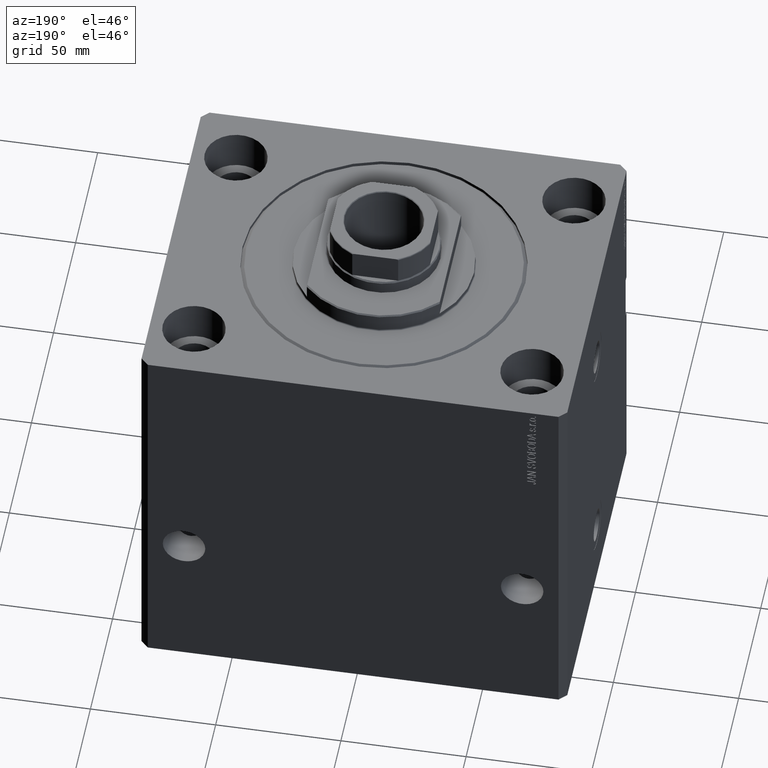
[diagram: clean part render]
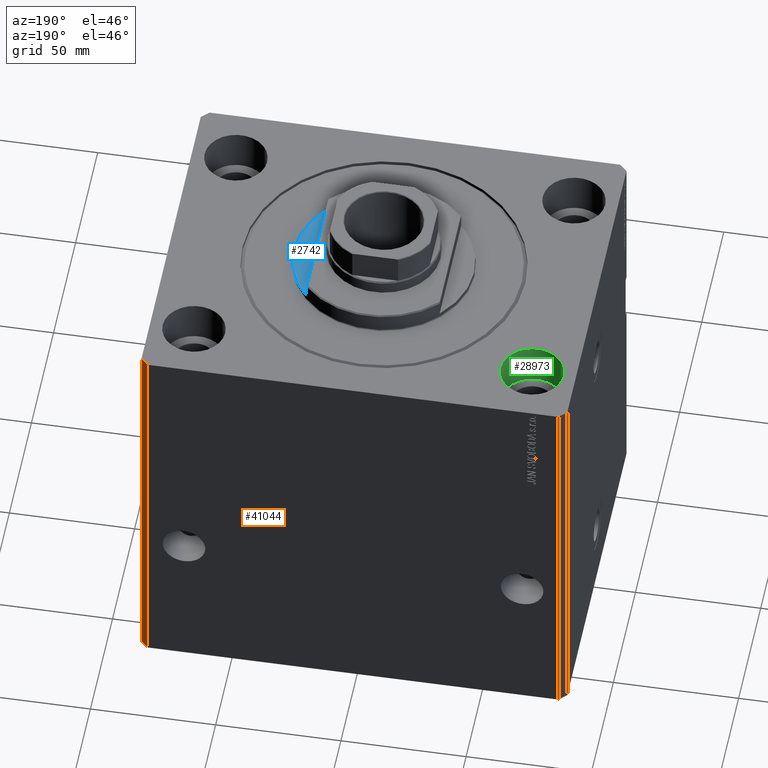
[diagram: same view with three faces highlighted in distinct colors, each labeled with its STEP entity id]
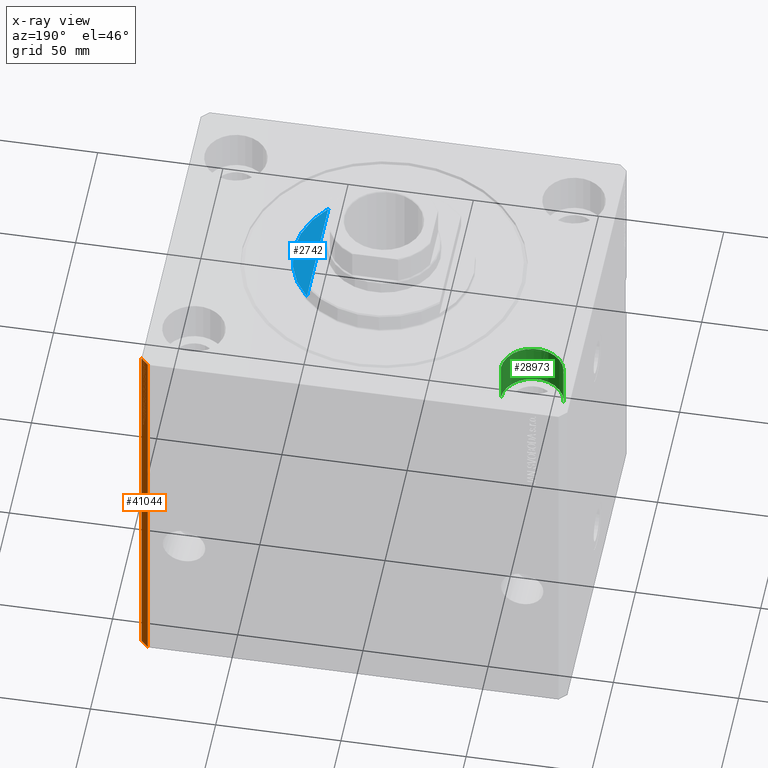
[diagram: x-ray of the same camera — body ghosted, the three highlighted faces saturated]
A machine part, auxiliary view with three faces highlighted in distinct colors.
The next image is the same camera in x-ray (body ghosted, the three faces saturated) — at least one of them is partly hidden behind the body in this view.
Their STEP definitions:

[orange] entity #41044 — the highlighted planar face has unit normal (0.7071, 0.7071, 0).
#2836 = VECTOR ( 'NONE', #12691, 1000.000000000000000 ) ;
#5228 = VERTEX_POINT ( 'NONE', #33619 ) ;
#8282 = EDGE_CURVE ( 'NONE', #5228, #43187, #18542, .T. ) ;
#8902 = VECTOR ( 'NONE', #35255, 1000.000000000000000 ) ;
#10125 = CARTESIAN_POINT ( 'NONE',  ( 85.00000000000055422, 66.99999999999997158, -160.0000000000000000 ) ) ;
#10369 = DIRECTION ( 'NONE',  ( -0.7071067811865344721, 0.7071067811865606734, 0.000000000000000000 ) ) ;
#12140 = DIRECTION ( 'NONE',  ( -0.7071067811865344721, 0.7071067811865606734, 0.000000000000000000 ) ) ;
#12691 = DIRECTION ( 'NONE',  ( -0.7071067811865344721, 0.7071067811865606734, 0.000000000000000000 ) ) ;
#14360 = FACE_OUTER_BOUND ( 'NONE', #29590, .T. ) ;
#14581 = DIRECTION ( 'NONE',  ( 0.7071067811865606734, 0.7071067811865344721, -0.000000000000000000 ) ) ;
#15719 = CARTESIAN_POINT ( 'NONE',  ( 82.00000000000059686, 70.00000000000002842, -160.0000000000000000 ) ) ;
#16211 = CARTESIAN_POINT ( 'NONE',  ( 82.00000000000059686, 70.00000000000002842, 0.000000000000000000 ) ) ;
#16430 = CARTESIAN_POINT ( 'NONE',  ( 85.00000000000055422, 66.99999999999997158, 0.000000000000000000 ) ) ;
#17866 = PLANE ( 'NONE',  #23207 ) ;
#18381 = EDGE_CURVE ( 'NONE', #19043, #34046, #38987, .T. ) ;
#18542 = LINE ( 'NONE', #15719, #25139 ) ;
#18933 = LINE ( 'NONE', #19620, #43448 ) ;
#19043 = VERTEX_POINT ( 'NONE', #38713 ) ;
#19620 = CARTESIAN_POINT ( 'NONE',  ( 85.00000000000055422, 66.99999999999997158, -160.0000000000000000 ) ) ;
#19928 = LINE ( 'NONE', #16430, #2836 ) ;
#23207 = AXIS2_PLACEMENT_3D ( 'NONE', #10125, #14581, #10369 ) ;
#25139 = VECTOR ( 'NONE', #32779, 1000.000000000000000 ) ;
#25275 = ORIENTED_EDGE ( 'NONE', *, *, #8282, .T. ) ;
#29590 = EDGE_LOOP ( 'NONE', ( #32405, #32274, #42216, #25275 ) ) ;
#29850 = EDGE_CURVE ( 'NONE', #34046, #43187, #19928, .T. ) ;
#32274 = ORIENTED_EDGE ( 'NONE', *, *, #18381, .F. ) ;
#32405 = ORIENTED_EDGE ( 'NONE', *, *, #29850, .F. ) ;
#32779 = DIRECTION ( 'NONE',  ( 0.000000000000000000, 0.000000000000000000, 1.000000000000000000 ) ) ;
#33619 = CARTESIAN_POINT ( 'NONE',  ( 82.00000000000059686, 70.00000000000002842, -160.0000000000000000 ) ) ;
#34046 = VERTEX_POINT ( 'NONE', #42063 ) ;
#35255 = DIRECTION ( 'NONE',  ( 0.000000000000000000, 0.000000000000000000, 1.000000000000000000 ) ) ;
#38515 = CARTESIAN_POINT ( 'NONE',  ( 85.00000000000055422, 66.99999999999997158, -160.0000000000000000 ) ) ;
#38713 = CARTESIAN_POINT ( 'NONE',  ( 85.00000000000055422, 66.99999999999997158, -160.0000000000000000 ) ) ;
#38987 = LINE ( 'NONE', #38515, #8902 ) ;
#41044 = ADVANCED_FACE ( 'NONE', ( #14360 ), #17866, .T. ) ;
#42063 = CARTESIAN_POINT ( 'NONE',  ( 85.00000000000055422, 66.99999999999997158, 0.000000000000000000 ) ) ;
#42216 = ORIENTED_EDGE ( 'NONE', *, *, #43767, .T. ) ;
#43187 = VERTEX_POINT ( 'NONE', #16211 ) ;
#43448 = VECTOR ( 'NONE', #12140, 1000.000000000000000 ) ;
#43767 = EDGE_CURVE ( 'NONE', #19043, #5228, #18933, .T. ) ;

[blue] entity #2742 — the highlighted planar face has unit normal (0, 0, 1).
#1842 = EDGE_CURVE ( 'NONE', #35322, #24261, #6266, .T. ) ;
#2016 = VECTOR ( 'NONE', #3955, 1000.000000000000000 ) ;
#2742 = ADVANCED_FACE ( 'NONE', ( #12617 ), #29900, .T. ) ;
#3955 = DIRECTION ( 'NONE',  ( -0.000000000000000000, -1.000000000000000000, -0.000000000000000000 ) ) ;
#4576 = CARTESIAN_POINT ( 'NONE',  ( 0.000000000000000000, 0.000000000000000000, -2.000000000000000000 ) ) ;
#6266 = CIRCLE ( 'NONE', #32402, 36.00000000000000000 ) ;
#7863 = DIRECTION ( 'NONE',  ( -1.000000000000000000, 0.000000000000000000, 0.000000000000000000 ) ) ;
#8593 = EDGE_CURVE ( 'NONE', #24261, #12926, #22673, .T. ) ;
#8849 = DIRECTION ( 'NONE',  ( 0.000000000000000000, 0.000000000000000000, -1.000000000000000000 ) ) ;
#8864 = DIRECTION ( 'NONE',  ( -1.000000000000000000, 0.000000000000000000, -0.000000000000000000 ) ) ;
#11386 = DIRECTION ( 'NONE',  ( 0.000000000000000000, 0.000000000000000000, -1.000000000000000000 ) ) ;
#12617 = FACE_OUTER_BOUND ( 'NONE', #30482, .T. ) ;
#12926 = VERTEX_POINT ( 'NONE', #38041 ) ;
#14825 = CARTESIAN_POINT ( 'NONE',  ( -36.00000000000000000, 4.408728476930470856E-15, -2.000000000000000000 ) ) ;
#15664 = CARTESIAN_POINT ( 'NONE',  ( 0.000000000000000000, 0.000000000000000000, -2.000000000000000000 ) ) ;
#20481 = CARTESIAN_POINT ( 'NONE',  ( -26.50000000000000000, 24.36698586202240691, -2.000000000000000000 ) ) ;
#20783 = EDGE_CURVE ( 'NONE', #12926, #35322, #31339, .T. ) ;
#21660 = AXIS2_PLACEMENT_3D ( 'NONE', #40865, #8849, #41097 ) ;
#22673 = LINE ( 'NONE', #36900, #2016 ) ;
#24261 = VERTEX_POINT ( 'NONE', #20481 ) ;
#29467 = ORIENTED_EDGE ( 'NONE', *, *, #1842, .T. ) ;
#29672 = DIRECTION ( 'NONE',  ( 0.000000000000000000, 0.000000000000000000, -1.000000000000000000 ) ) ;
#29900 = PLANE ( 'NONE',  #35401 ) ;
#30482 = EDGE_LOOP ( 'NONE', ( #42239, #29467, #32008 ) ) ;
#31339 = CIRCLE ( 'NONE', #21660, 36.00000000000000000 ) ;
#32008 = ORIENTED_EDGE ( 'NONE', *, *, #8593, .T. ) ;
#32402 = AXIS2_PLACEMENT_3D ( 'NONE', #4576, #11386, #7863 ) ;
#35322 = VERTEX_POINT ( 'NONE', #14825 ) ;
#35401 = AXIS2_PLACEMENT_3D ( 'NONE', #15664, #29672, #8864 ) ;
#36900 = CARTESIAN_POINT ( 'NONE',  ( -26.50000000000000000, -36.36963018783666257, -2.000000000000000000 ) ) ;
#38041 = CARTESIAN_POINT ( 'NONE',  ( -26.50000000000000000, -24.36698586202240691, -2.000000000000000000 ) ) ;
#40865 = CARTESIAN_POINT ( 'NONE',  ( 0.000000000000000000, 0.000000000000000000, -2.000000000000000000 ) ) ;
#41097 = DIRECTION ( 'NONE',  ( -1.000000000000000000, 0.000000000000000000, 0.000000000000000000 ) ) ;
#42239 = ORIENTED_EDGE ( 'NONE', *, *, #20783, .T. ) ;

[green] entity #28973 — the highlighted cylindrical surface (edge-blend (fillet) strip) has radius 12.5 mm, axis along (0, 0, 1).
#132 = CARTESIAN_POINT ( 'NONE',  ( -67.50000000000000000, 47.50000000000000000, -17.00000000000000000 ) ) ;
#728 = ORIENTED_EDGE ( 'NONE', *, *, #27548, .F. ) ;
#1924 = CARTESIAN_POINT ( 'NONE',  ( -80.00000000000000000, 47.50000000000000000, -17.00000000000000000 ) ) ;
#3257 = CARTESIAN_POINT ( 'NONE',  ( -67.50000000000000000, 47.50000000000000000, -17.00000000000000000 ) ) ;
#5224 = VERTEX_POINT ( 'NONE', #26608 ) ;
#8753 = AXIS2_PLACEMENT_3D ( 'NONE', #3257, #17324, #14741 ) ;
#9611 = VERTEX_POINT ( 'NONE', #43756 ) ;
#10207 = EDGE_LOOP ( 'NONE', ( #728, #20633, #35959, #37265 ) ) ;
#10933 = VECTOR ( 'NONE', #16187, 1000.000000000000000 ) ;
#14741 = DIRECTION ( 'NONE',  ( 1.000000000000000000, 0.000000000000000000, 0.000000000000000000 ) ) ;
#16187 = DIRECTION ( 'NONE',  ( -0.000000000000000000, -0.000000000000000000, 1.000000000000000000 ) ) ;
#17324 = DIRECTION ( 'NONE',  ( 0.000000000000000000, 0.000000000000000000, 1.000000000000000000 ) ) ;
#17457 = DIRECTION ( 'NONE',  ( 1.000000000000000000, 0.000000000000000000, 0.000000000000000000 ) ) ;
#17690 = DIRECTION ( 'NONE',  ( 1.000000000000000000, 0.000000000000000000, 0.000000000000000000 ) ) ;
#17873 = EDGE_CURVE ( 'NONE', #37981, #9611, #41699, .T. ) ;
#18606 = AXIS2_PLACEMENT_3D ( 'NONE', #21871, #32843, #17690 ) ;
#20155 = LINE ( 'NONE', #1924, #10933 ) ;
#20544 = EDGE_CURVE ( 'NONE', #5224, #9611, #44430, .T. ) ;
#20619 = CARTESIAN_POINT ( 'NONE',  ( -80.00000000000000000, 47.50000000000000000, -17.00000000000000000 ) ) ;
#20633 = ORIENTED_EDGE ( 'NONE', *, *, #25790, .T. ) ;
#21871 = CARTESIAN_POINT ( 'NONE',  ( -67.50000000000000000, 47.50000000000000000, 0.000000000000000000 ) ) ;
#24920 = CYLINDRICAL_SURFACE ( 'NONE', #38595, 12.49999999999999645 ) ;
#25790 = EDGE_CURVE ( 'NONE', #32002, #37981, #20155, .T. ) ;
#26608 = CARTESIAN_POINT ( 'NONE',  ( -55.00000000000000711, 47.50000000000000000, -17.00000000000000000 ) ) ;
#26669 = DIRECTION ( 'NONE',  ( -0.000000000000000000, -0.000000000000000000, 1.000000000000000000 ) ) ;
#27397 = CIRCLE ( 'NONE', #8753, 12.49999999999999645 ) ;
#27548 = EDGE_CURVE ( 'NONE', #32002, #5224, #27397, .T. ) ;
#28973 = ADVANCED_FACE ( 'NONE', ( #31444 ), #24920, .F. ) ;
#31444 = FACE_OUTER_BOUND ( 'NONE', #10207, .T. ) ;
#31706 = CARTESIAN_POINT ( 'NONE',  ( -80.00000000000000000, 47.50000000000000000, 0.000000000000000000 ) ) ;
#32002 = VERTEX_POINT ( 'NONE', #20619 ) ;
#32131 = VECTOR ( 'NONE', #26669, 1000.000000000000000 ) ;
#32374 = DIRECTION ( 'NONE',  ( -0.000000000000000000, -0.000000000000000000, 1.000000000000000000 ) ) ;
#32843 = DIRECTION ( 'NONE',  ( 0.000000000000000000, 0.000000000000000000, 1.000000000000000000 ) ) ;
#35959 = ORIENTED_EDGE ( 'NONE', *, *, #17873, .T. ) ;
#37167 = CARTESIAN_POINT ( 'NONE',  ( -55.00000000000000711, 47.50000000000000000, -17.00000000000000000 ) ) ;
#37265 = ORIENTED_EDGE ( 'NONE', *, *, #20544, .F. ) ;
#37981 = VERTEX_POINT ( 'NONE', #31706 ) ;
#38595 = AXIS2_PLACEMENT_3D ( 'NONE', #132, #32374, #17457 ) ;
#41699 = CIRCLE ( 'NONE', #18606, 12.49999999999999645 ) ;
#43756 = CARTESIAN_POINT ( 'NONE',  ( -55.00000000000000711, 47.50000000000000000, 0.000000000000000000 ) ) ;
#44430 = LINE ( 'NONE', #37167, #32131 ) ;